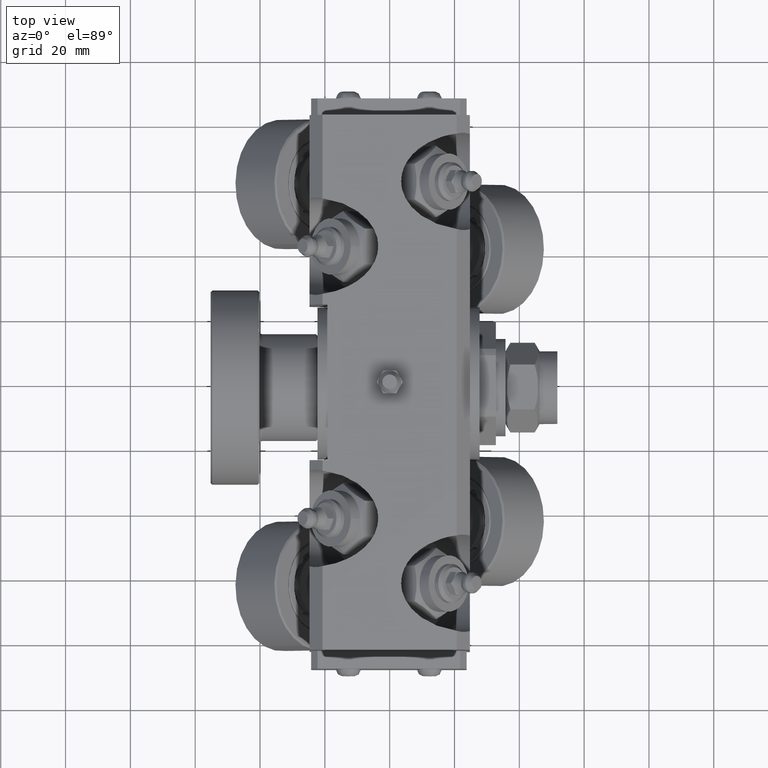
[diagram: clean part render]
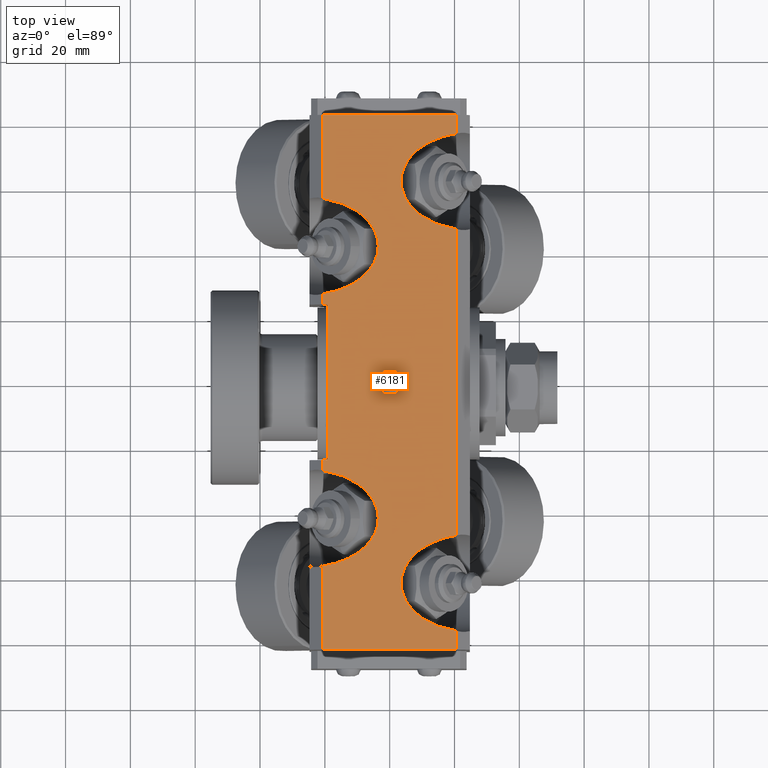
[diagram: same view with one face highlighted and labeled with its STEP entity id]
A machine part, top view. The second image highlights one B-rep face of the part: STEP entity #6181.
In plain terms, the highlighted planar face has unit normal (-0, 0, 1).
Its self-contained STEP definition (entity closure, byte-faithful):
#385=ELLIPSE('',#7018,21.2132034355964,15.);
#386=ELLIPSE('',#7023,21.2132034355964,15.);
#388=ELLIPSE('',#7031,21.2132034355964,15.);
#389=ELLIPSE('',#7032,21.2132034355964,15.);
#390=ELLIPSE('',#7033,21.2132034355964,15.);
#391=ELLIPSE('',#7034,21.2132034355964,15.);
#404=FACE_BOUND('',#1065,.T.);
#513=PLANE('',#7030);
#704=FACE_OUTER_BOUND('',#1064,.T.);
#1064=EDGE_LOOP('',(#4493,#4494,#4495,#4496,#4497,#4498,#4499,#4500,#4501,
#4502,#4503,#4504,#4505,#4506,#4507,#4508,#4509,#4510));
#1065=EDGE_LOOP('',(#4511));
#1467=CIRCLE('',#6961,2.4585);
#1915=LINE('',#9889,#2286);
#1921=LINE('',#9900,#2292);
#1926=LINE('',#9924,#2297);
#1948=LINE('',#10005,#2319);
#1950=LINE('',#10012,#2321);
#1970=LINE('',#10569,#2341);
#1984=LINE('',#10653,#2355);
#1985=LINE('',#10655,#2356);
#1986=LINE('',#10661,#2357);
#1987=LINE('',#10667,#2358);
#1988=LINE('',#10669,#2359);
#1989=LINE('',#10670,#2360);
#2286=VECTOR('',#7706,10.);
#2292=VECTOR('',#7714,10.);
#2297=VECTOR('',#7721,10.);
#2319=VECTOR('',#7787,10.);
#2321=VECTOR('',#7795,10.);
#2341=VECTOR('',#7895,10.);
#2355=VECTOR('',#8011,10.);
#2356=VECTOR('',#8012,10.);
#2357=VECTOR('',#8017,10.);
#2358=VECTOR('',#8022,10.);
#2359=VECTOR('',#8023,10.);
#2360=VECTOR('',#8024,10.);
#2669=VERTEX_POINT('',#9886);
#2670=VERTEX_POINT('',#9888);
#2674=VERTEX_POINT('',#9898);
#2678=VERTEX_POINT('',#9922);
#2715=VERTEX_POINT('',#10004);
#2717=VERTEX_POINT('',#10010);
#2734=VERTEX_POINT('',#10168);
#2748=VERTEX_POINT('',#10566);
#2749=VERTEX_POINT('',#10568);
#2764=VERTEX_POINT('',#10632);
#2766=VERTEX_POINT('',#10640);
#2769=VERTEX_POINT('',#10654);
#2770=VERTEX_POINT('',#10656);
#2771=VERTEX_POINT('',#10658);
#2772=VERTEX_POINT('',#10660);
#2773=VERTEX_POINT('',#10662);
#2774=VERTEX_POINT('',#10664);
#2775=VERTEX_POINT('',#10666);
#2776=VERTEX_POINT('',#10668);
#3290=EDGE_CURVE('',#2670,#2669,#1915,.T.);
#3296=EDGE_CURVE('',#2669,#2674,#1921,.T.);
#3302=EDGE_CURVE('',#2674,#2678,#1926,.T.);
#3342=EDGE_CURVE('',#2670,#2715,#1948,.T.);
#3346=EDGE_CURVE('',#2717,#2678,#1950,.T.);
#3371=EDGE_CURVE('',#2734,#2734,#1467,.T.);
#3398=EDGE_CURVE('',#2748,#2749,#1970,.T.);
#3431=EDGE_CURVE('',#2764,#2715,#385,.T.);
#3435=EDGE_CURVE('',#2717,#2766,#386,.T.);
#3442=EDGE_CURVE('',#2749,#2766,#1984,.T.);
#3443=EDGE_CURVE('',#2769,#2748,#1985,.T.);
#3444=EDGE_CURVE('',#2769,#2770,#388,.T.);
#3445=EDGE_CURVE('',#2770,#2771,#389,.T.);
#3446=EDGE_CURVE('',#2772,#2771,#1986,.T.);
#3447=EDGE_CURVE('',#2772,#2773,#390,.T.);
#3448=EDGE_CURVE('',#2773,#2774,#391,.T.);
#3449=EDGE_CURVE('',#2775,#2774,#1987,.T.);
#3450=EDGE_CURVE('',#2776,#2775,#1988,.T.);
#3451=EDGE_CURVE('',#2764,#2776,#1989,.T.);
#4493=ORIENTED_EDGE('',*,*,#3302,.T.);
#4494=ORIENTED_EDGE('',*,*,#3346,.F.);
#4495=ORIENTED_EDGE('',*,*,#3435,.T.);
#4496=ORIENTED_EDGE('',*,*,#3442,.F.);
#4497=ORIENTED_EDGE('',*,*,#3398,.F.);
#4498=ORIENTED_EDGE('',*,*,#3443,.F.);
#4499=ORIENTED_EDGE('',*,*,#3444,.T.);
#4500=ORIENTED_EDGE('',*,*,#3445,.T.);
#4501=ORIENTED_EDGE('',*,*,#3446,.F.);
#4502=ORIENTED_EDGE('',*,*,#3447,.T.);
#4503=ORIENTED_EDGE('',*,*,#3448,.T.);
#4504=ORIENTED_EDGE('',*,*,#3449,.F.);
#4505=ORIENTED_EDGE('',*,*,#3450,.F.);
#4506=ORIENTED_EDGE('',*,*,#3451,.F.);
#4507=ORIENTED_EDGE('',*,*,#3431,.T.);
#4508=ORIENTED_EDGE('',*,*,#3342,.F.);
#4509=ORIENTED_EDGE('',*,*,#3290,.T.);
#4510=ORIENTED_EDGE('',*,*,#3296,.T.);
#4511=ORIENTED_EDGE('',*,*,#3371,.T.);
#6181=ADVANCED_FACE('',(#704,#404),#513,.T.);
#6961=AXIS2_PLACEMENT_3D('',#10169,#7845,#7846);
#7018=AXIS2_PLACEMENT_3D('',#10633,#7982,#7983);
#7023=AXIS2_PLACEMENT_3D('',#10641,#7993,#7994);
#7030=AXIS2_PLACEMENT_3D('',#10652,#8009,#8010);
#7031=AXIS2_PLACEMENT_3D('',#10657,#8013,#8014);
#7032=AXIS2_PLACEMENT_3D('',#10659,#8015,#8016);
#7033=AXIS2_PLACEMENT_3D('',#10663,#8018,#8019);
#7034=AXIS2_PLACEMENT_3D('',#10665,#8020,#8021);
#7706=DIRECTION('',(1.,0.,8.97149918889015E-17));
#7714=DIRECTION('',(0.,-1.,0.));
#7721=DIRECTION('',(-1.,0.,-8.97149918889015E-17));
#7787=DIRECTION('',(0.,1.,0.));
#7795=DIRECTION('',(0.,1.,0.));
#7845=DIRECTION('center_axis',(8.97149918889015E-17,0.,-1.));
#7846=DIRECTION('ref_axis',(1.,0.,8.97149918889015E-17));
#7895=DIRECTION('',(-1.,0.,-8.97149918889015E-17));
#7982=DIRECTION('center_axis',(8.97149918889015E-17,0.,-1.));
#7983=DIRECTION('ref_axis',(1.,0.,1.04672830578918E-16));
#7993=DIRECTION('center_axis',(8.97149918889015E-17,0.,-1.));
#7994=DIRECTION('ref_axis',(1.,0.,1.04672830578918E-16));
#8009=DIRECTION('center_axis',(-8.97149918889015E-17,0.,1.));
#8010=DIRECTION('ref_axis',(1.,0.,8.97149918889015E-17));
#8011=DIRECTION('',(0.,1.,0.));
#8012=DIRECTION('',(0.,-1.,0.));
#8013=DIRECTION('center_axis',(8.97149918889015E-17,0.,-1.));
#8014=DIRECTION('ref_axis',(1.,0.,0.));
#8015=DIRECTION('center_axis',(8.97149918889015E-17,0.,-1.));
#8016=DIRECTION('ref_axis',(1.,0.,0.));
#8017=DIRECTION('',(0.,-1.,0.));
#8018=DIRECTION('center_axis',(8.97149918889015E-17,0.,-1.));
#8019=DIRECTION('ref_axis',(1.,0.,0.));
#8020=DIRECTION('center_axis',(8.97149918889015E-17,0.,-1.));
#8021=DIRECTION('ref_axis',(1.,0.,0.));
#8022=DIRECTION('',(0.,-1.,0.));
#8023=DIRECTION('',(1.,0.,8.97149918889015E-17));
#8024=DIRECTION('',(0.,1.,0.));
#9886=CARTESIAN_POINT('',(-19.25,24.,24.75));
#9888=CARTESIAN_POINT('',(-20.714,24.,24.75));
#9889=CARTESIAN_POINT('',(-24.75,24.,24.75));
#9898=CARTESIAN_POINT('',(-19.25,-24.,24.75));
#9900=CARTESIAN_POINT('',(-19.25,-2.22044604925031E-15,24.75));
#9922=CARTESIAN_POINT('',(-20.714,-24.,24.75));
#9924=CARTESIAN_POINT('',(-24.75,-24.,24.75));
#10004=CARTESIAN_POINT('',(-20.714,27.2739906288228,24.75));
#10005=CARTESIAN_POINT('',(-20.714,0.,24.75));
#10010=CARTESIAN_POINT('',(-20.714,-27.2739906288227,24.75));
#10012=CARTESIAN_POINT('',(-20.714,0.,24.75));
#10168=CARTESIAN_POINT('',(-2.4585,-3.01079415570377E-16,24.75));
#10169=CARTESIAN_POINT('Origin',(-4.44089209850063E-15,0.,24.75));
#10566=CARTESIAN_POINT('',(20.714,-82.5,24.75));
#10568=CARTESIAN_POINT('',(-20.714,-82.5,24.75));
#10569=CARTESIAN_POINT('',(-24.75,-82.5,24.75));
#10632=CARTESIAN_POINT('',(-20.714,56.7260093711772,24.75));
#10633=CARTESIAN_POINT('Origin',(-24.75,42.,24.75));
#10640=CARTESIAN_POINT('',(-20.714,-56.7260093711772,24.75));
#10641=CARTESIAN_POINT('Origin',(-24.75,-42.,24.75));
#10652=CARTESIAN_POINT('Origin',(-24.75,0.,24.75));
#10653=CARTESIAN_POINT('',(-20.714,0.,24.75));
#10654=CARTESIAN_POINT('',(20.714,-76.7260093711772,24.75));
#10655=CARTESIAN_POINT('',(20.714,0.,24.75));
#10656=CARTESIAN_POINT('',(3.53679656440355,-62.,24.75));
#10657=CARTESIAN_POINT('Origin',(24.75,-62.,24.75));
#10658=CARTESIAN_POINT('',(20.714,-47.2739906288228,24.75));
#10659=CARTESIAN_POINT('Origin',(24.75,-62.,24.75));
#10660=CARTESIAN_POINT('',(20.714,47.2739906288227,24.75));
#10661=CARTESIAN_POINT('',(20.714,0.,24.75));
#10662=CARTESIAN_POINT('',(3.5367965644035,62.,24.75));
#10663=CARTESIAN_POINT('Origin',(24.7499999999999,62.,24.75));
#10664=CARTESIAN_POINT('',(20.714,76.7260093711772,24.75));
#10665=CARTESIAN_POINT('Origin',(24.7499999999999,62.,24.75));
#10666=CARTESIAN_POINT('',(20.714,82.5,24.75));
#10667=CARTESIAN_POINT('',(20.714,0.,24.75));
#10668=CARTESIAN_POINT('',(-20.714,82.5,24.75));
#10669=CARTESIAN_POINT('',(-24.75,82.5,24.75));
#10670=CARTESIAN_POINT('',(-20.714,0.,24.75));